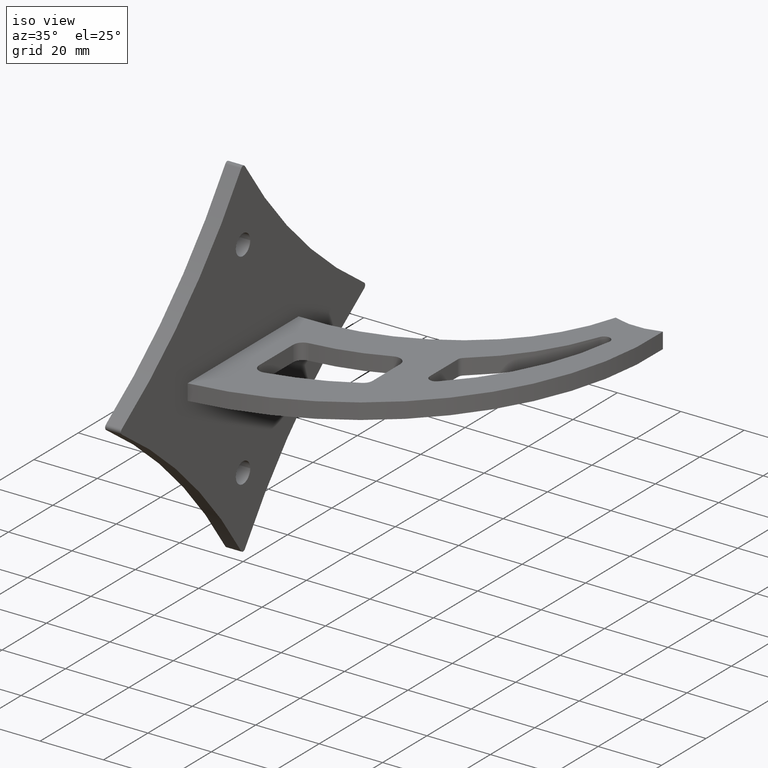
[diagram: clean part render]
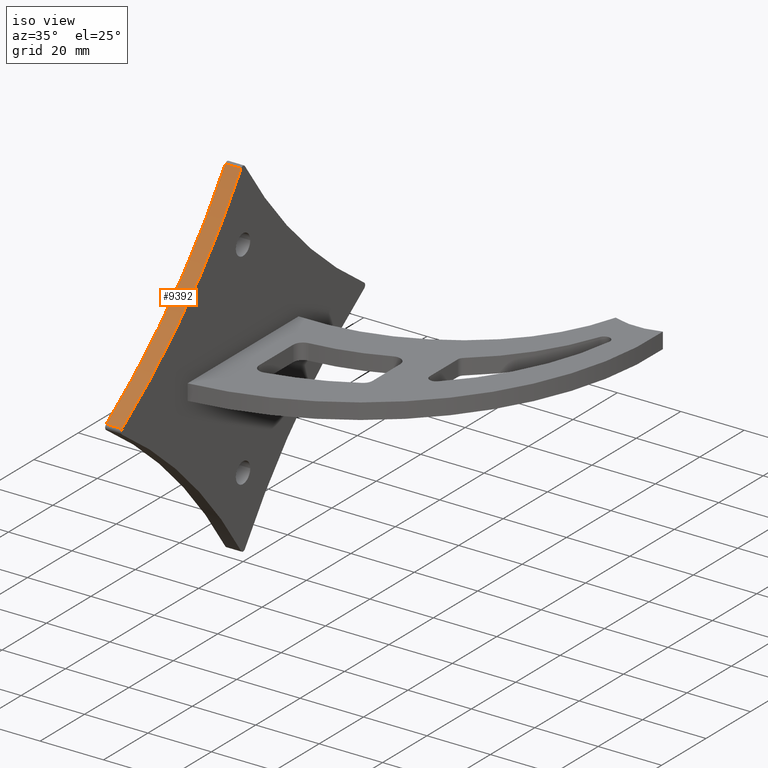
[diagram: same view with one face highlighted and labeled with its STEP entity id]
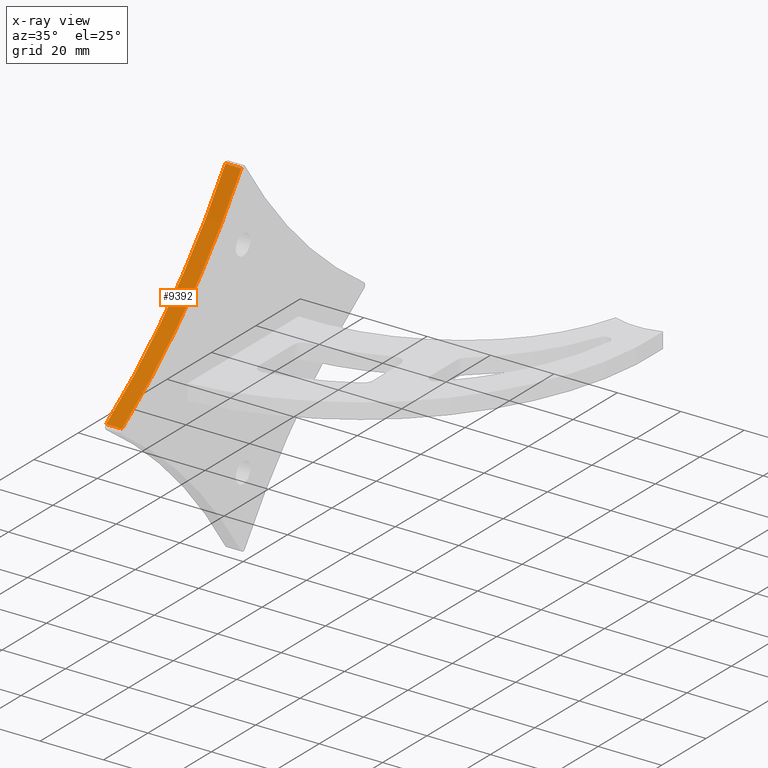
[diagram: x-ray of the same camera — body ghosted, the highlighted face saturated]
A machine part, iso view. The second image highlights one B-rep face of the part: STEP entity #9392.
The next image is the same camera in x-ray: the body ghosted, the highlighted face saturated — about 0% of this face is hidden behind the body in this view.
In plain terms, the highlighted cylindrical surface (partial cylindrical patch) has radius 191.062 mm, axis along (1, 0, -0).
Its self-contained STEP definition (entity closure, byte-faithful):
#800 = CARTESIAN_POINT ( 'NONE',  ( -4.999999999999644729, -160.0977158073165754, 162.5977158073165469 ) ) ;
#866 = VERTEX_POINT ( 'NONE', #5823 ) ;
#1003 = ORIENTED_EDGE ( 'NONE', *, *, #11428, .F. ) ;
#1057 = CARTESIAN_POINT ( 'NONE',  ( -4.999999999999878320, -54.55241244806934731, 3.333570925127580242 ) ) ;
#1374 = ORIENTED_EDGE ( 'NONE', *, *, #3966, .T. ) ;
#1452 = EDGE_LOOP ( 'NONE', ( #1374, #7380, #1003, #1782 ) ) ;
#1616 = CARTESIAN_POINT ( 'NONE',  ( 1.211306886973891508E-13, -54.55241244806933310, 3.333570925127580242 ) ) ;
#1749 = DIRECTION ( 'NONE',  ( 1.000000000000000000, 2.220446049250313081E-15, -0.000000000000000000 ) ) ;
#1782 = ORIENTED_EDGE ( 'NONE', *, *, #8874, .T. ) ;
#1955 = CIRCLE ( 'NONE', #3094, 191.0625000000010232 ) ;
#1982 = AXIS2_PLACEMENT_3D ( 'NONE', #800, #1749, #10114 ) ;
#2241 = CARTESIAN_POINT ( 'NONE',  ( 3.554883405583555002E-13, -160.0977158073165754, 162.5977158073165469 ) ) ;
#2675 = DIRECTION ( 'NONE',  ( 2.219901288197982755E-15, -1.000000000000000000, 0.000000000000000000 ) ) ;
#2837 = CARTESIAN_POINT ( 'NONE',  ( -4.999999999999998224, -0.8335709251276302023, 57.05241244806936862 ) ) ;
#2908 = VECTOR ( 'NONE', #7681, 1000.000000000000000 ) ;
#2989 = FACE_OUTER_BOUND ( 'NONE', #1452, .T. ) ;
#3094 = AXIS2_PLACEMENT_3D ( 'NONE', #2241, #5107, #9610 ) ;
#3300 = CIRCLE ( 'NONE', #6158, 191.0625000000010232 ) ;
#3446 = CARTESIAN_POINT ( 'NONE',  ( -4.999999999999878320, -54.55241244806934731, 3.333570925127580242 ) ) ;
#3751 = LINE ( 'NONE', #6879, #2908 ) ;
#3966 = EDGE_CURVE ( 'NONE', #5634, #866, #1955, .T. ) ;
#5107 = DIRECTION ( 'NONE',  ( 1.000000000000000000, 2.220446049250313081E-15, -0.000000000000000000 ) ) ;
#5634 = VERTEX_POINT ( 'NONE', #1616 ) ;
#5823 = CARTESIAN_POINT ( 'NONE',  ( 1.850899267469538032E-15, -0.8335709251276191001, 57.05241244806936862 ) ) ;
#6158 = AXIS2_PLACEMENT_3D ( 'NONE', #11572, #11529, #2675 ) ;
#6398 = VERTEX_POINT ( 'NONE', #1057 ) ;
#6405 = VERTEX_POINT ( 'NONE', #2837 ) ;
#6879 = CARTESIAN_POINT ( 'NONE',  ( -4.999999999999998224, -0.8335709251276302023, 57.05241244806936862 ) ) ;
#7380 = ORIENTED_EDGE ( 'NONE', *, *, #9820, .F. ) ;
#7681 = DIRECTION ( 'NONE',  ( 1.000000000000000000, 2.220446049250313081E-15, -0.000000000000000000 ) ) ;
#7825 = CYLINDRICAL_SURFACE ( 'NONE', #1982, 191.0625000000010232 ) ;
#8118 = VECTOR ( 'NONE', #10890, 1000.000000000000000 ) ;
#8265 = LINE ( 'NONE', #3446, #8118 ) ;
#8874 = EDGE_CURVE ( 'NONE', #6398, #5634, #8265, .T. ) ;
#9392 = ADVANCED_FACE ( 'NONE', ( #2989 ), #7825, .F. ) ;
#9610 = DIRECTION ( 'NONE',  ( 2.220446049250312686E-15, -1.000000000000000000, 0.000000000000000000 ) ) ;
#9820 = EDGE_CURVE ( 'NONE', #6405, #866, #3751, .T. ) ;
#10114 = DIRECTION ( 'NONE',  ( -2.219901288197982755E-15, 1.000000000000000000, 0.000000000000000000 ) ) ;
#10890 = DIRECTION ( 'NONE',  ( 1.000000000000000000, 2.220446049250313081E-15, -0.000000000000000000 ) ) ;
#11428 = EDGE_CURVE ( 'NONE', #6398, #6405, #3300, .T. ) ;
#11529 = DIRECTION ( 'NONE',  ( 1.000000000000000000, 2.220446049250313081E-15, -0.000000000000000000 ) ) ;
#11572 = CARTESIAN_POINT ( 'NONE',  ( -4.999999999999644729, -160.0977158073165754, 162.5977158073165469 ) ) ;